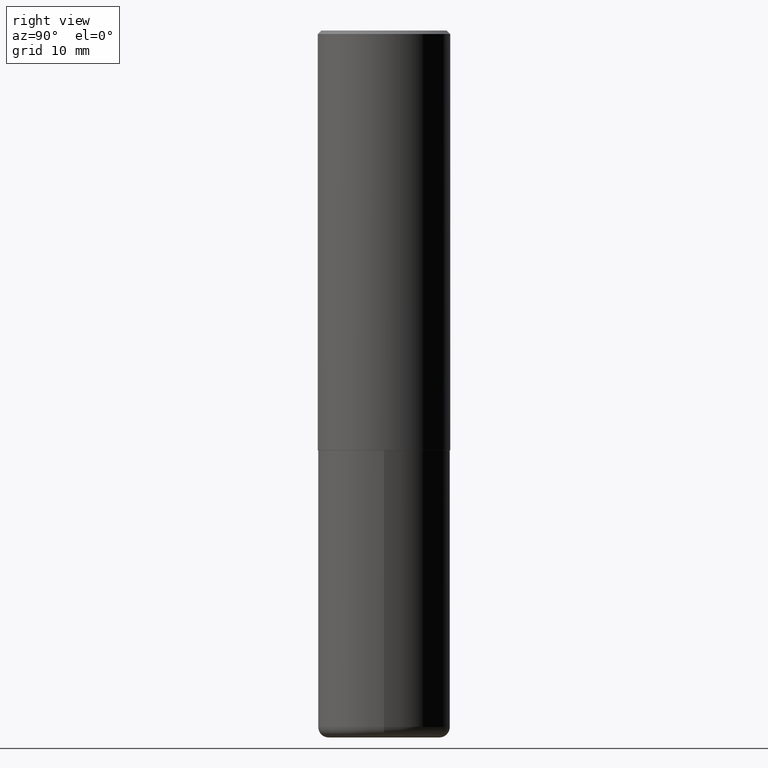
[diagram: clean part render]
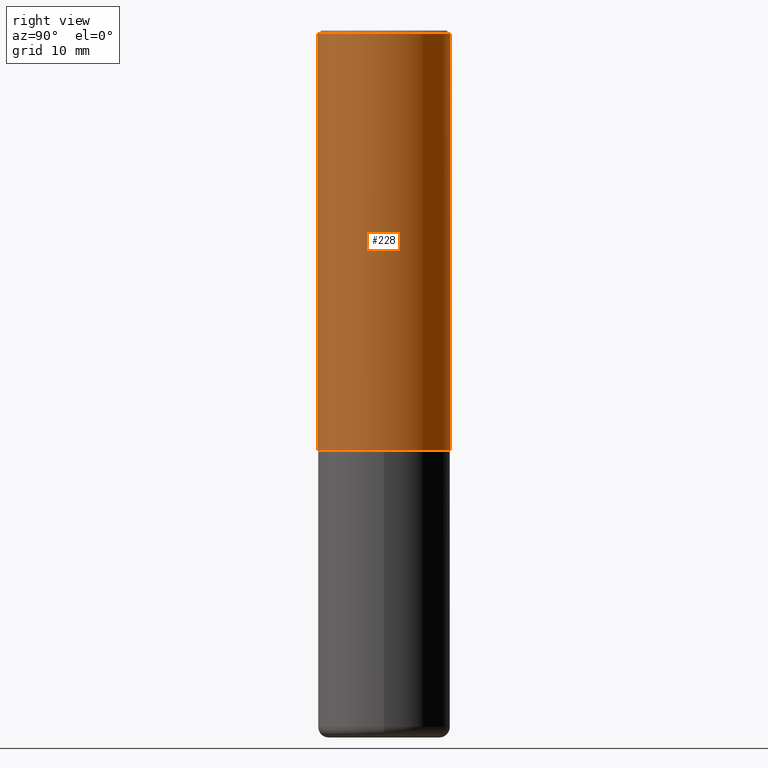
[diagram: same view with one face highlighted and labeled with its STEP entity id]
A machine part, right view. The second image highlights one B-rep face of the part: STEP entity #228.
In plain terms, the highlighted cylindrical surface (partial cylindrical patch) has radius 9.525 mm, axis along (-0, 0, 1).
Its self-contained STEP definition (entity closure, byte-faithful):
#4 = ORIENTED_EDGE ( 'NONE', *, *, #141, .T. ) ;
#27 = CARTESIAN_POINT ( 'NONE',  ( -2.618611004132351200E-15, -0.3750000000000001665, 1.309785868171475725E-15 ) ) ;
#34 = AXIS2_PLACEMENT_3D ( 'NONE', #68, #384, #188 ) ;
#68 = CARTESIAN_POINT ( 'NONE',  ( 5.803419400614030161E-29, -8.291817736104219412E-15, -2.373999999999999666 ) ) ;
#71 = DIRECTION ( 'NONE',  ( -2.444574305229161733E-29, 3.492762315123933951E-15, 1.000000000000000000 ) ) ;
#75 = CARTESIAN_POINT ( 'NONE',  ( 0.000000000000000000, 0.000000000000000000, 0.000000000000000000 ) ) ;
#102 = CARTESIAN_POINT ( 'NONE',  ( 2.618611004132350411E-15, 0.3749999999999999445, -0.02000000000000141595 ) ) ;
#106 = AXIS2_PLACEMENT_3D ( 'NONE', #75, #197, #366 ) ;
#130 = VERTEX_POINT ( 'NONE', #160 ) ;
#136 = ORIENTED_EDGE ( 'NONE', *, *, #199, .F. ) ;
#141 = EDGE_CURVE ( 'NONE', #130, #336, #333, .T. ) ;
#143 = VERTEX_POINT ( 'NONE', #350 ) ;
#146 = VECTOR ( 'NONE', #71, 39.37007874015748143 ) ;
#155 = LINE ( 'NONE', #159, #177 ) ;
#157 = FACE_OUTER_BOUND ( 'NONE', #218, .T. ) ;
#158 = EDGE_CURVE ( 'NONE', #130, #143, #183, .T. ) ;
#159 = CARTESIAN_POINT ( 'NONE',  ( 2.664535259100376486E-15, 0.3750000000000001665, -1.309785868171475725E-15 ) ) ;
#160 = CARTESIAN_POINT ( 'NONE',  ( -2.618611004132293613E-15, -0.3750000000000085487, -2.373999999999998334 ) ) ;
#161 = CARTESIAN_POINT ( 'NONE',  ( 4.889148610458350090E-31, -6.985524630247905373E-17, -0.02000000000000010797 ) ) ;
#168 = VERTEX_POINT ( 'NONE', #102 ) ;
#177 = VECTOR ( 'NONE', #377, 39.37007874015748143 ) ;
#183 = LINE ( 'NONE', #27, #146 ) ;
#188 = DIRECTION ( 'NONE',  ( -6.982962677686266711E-15, -1.000000000000000000, 3.642463991552348591E-15 ) ) ;
#197 = DIRECTION ( 'NONE',  ( -2.444574305229161733E-29, 3.492762315123933951E-15, 1.000000000000000000 ) ) ;
#199 = EDGE_CURVE ( 'NONE', #143, #168, #388, .T. ) ;
#215 = CARTESIAN_POINT ( 'NONE',  ( 2.664535259100406068E-15, 0.3749999999999920619, -2.374000000000001442 ) ) ;
#218 = EDGE_LOOP ( 'NONE', ( #4, #341, #136, #382 ) ) ;
#228 = ADVANCED_FACE ( 'NONE', ( #157 ), #395, .T. ) ;
#277 = DIRECTION ( 'NONE',  ( -2.444574305229161733E-29, 3.492762315123933951E-15, 1.000000000000000000 ) ) ;
#298 = EDGE_CURVE ( 'NONE', #336, #168, #155, .T. ) ;
#319 = AXIS2_PLACEMENT_3D ( 'NONE', #161, #277, #413 ) ;
#333 = CIRCLE ( 'NONE', #34, 0.3750000000000002776 ) ;
#336 = VERTEX_POINT ( 'NONE', #215 ) ;
#341 = ORIENTED_EDGE ( 'NONE', *, *, #298, .T. ) ;
#350 = CARTESIAN_POINT ( 'NONE',  ( -2.572686749164323547E-15, -0.3750000000000001110, -0.01999999999999879652 ) ) ;
#366 = DIRECTION ( 'NONE',  ( -6.982962677686266711E-15, -1.000000000000000000, 3.492762315123933556E-15 ) ) ;
#377 = DIRECTION ( 'NONE',  ( -2.444574305229161733E-29, 3.492762315123933951E-15, 1.000000000000000000 ) ) ;
#382 = ORIENTED_EDGE ( 'NONE', *, *, #158, .F. ) ;
#384 = DIRECTION ( 'NONE',  ( -2.444574305229161733E-29, 3.492762315123933951E-15, 1.000000000000000000 ) ) ;
#388 = CIRCLE ( 'NONE', #319, 0.3750000000000000555 ) ;
#395 = CYLINDRICAL_SURFACE ( 'NONE', #106, 0.3750000000000001665 ) ;
#413 = DIRECTION ( 'NONE',  ( -6.982962677686265922E-15, -1.000000000000000000, 3.494488891895536035E-15 ) ) ;